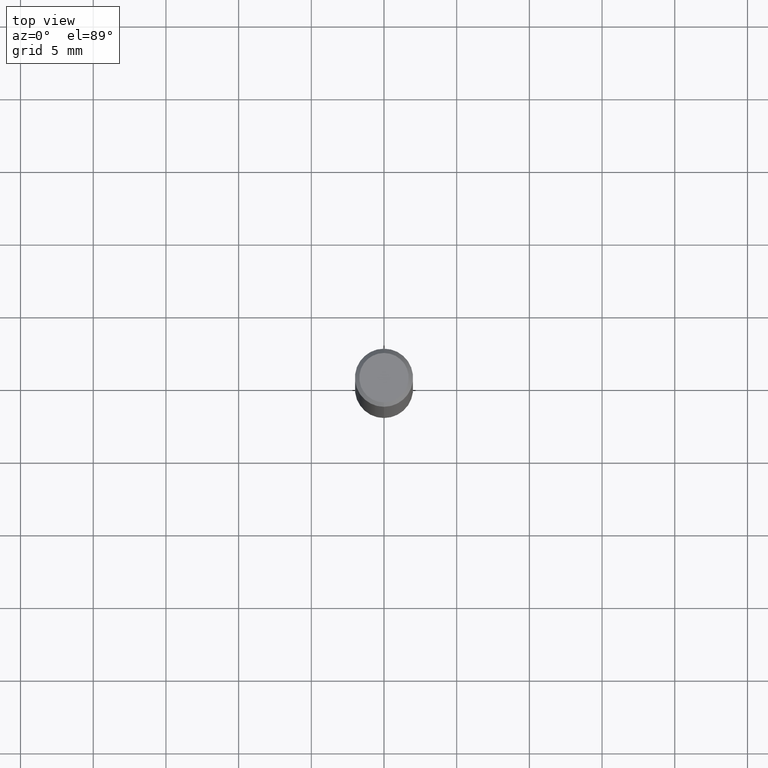
[diagram: clean part render]
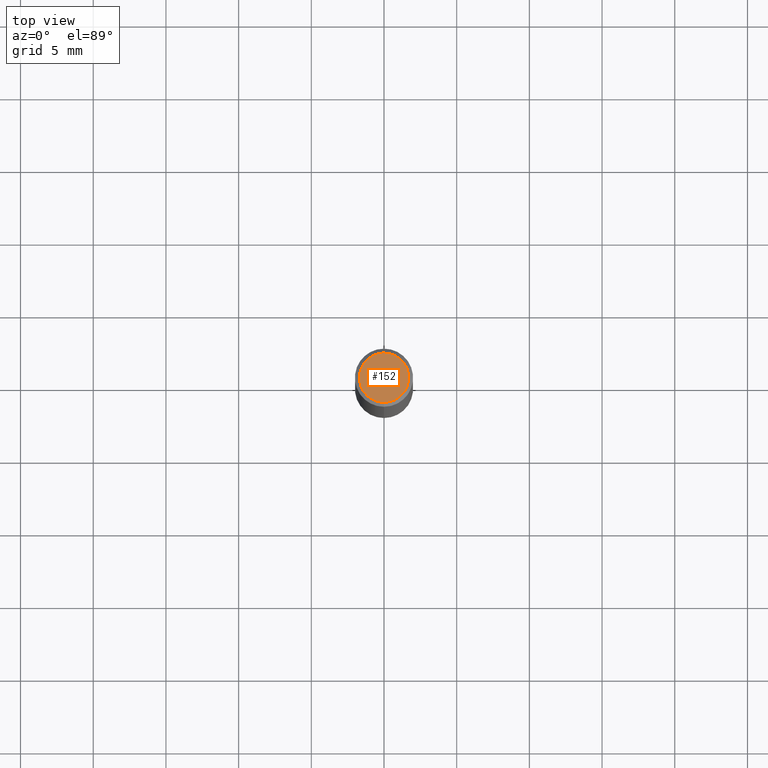
[diagram: same view with one face highlighted and labeled with its STEP entity id]
A machine part, top view. The second image highlights one B-rep face of the part: STEP entity #152.
In plain terms, the highlighted planar face has unit normal (-0, 0, 1).
Its self-contained STEP definition (entity closure, byte-faithful):
#90=EDGE_CURVE('',#94,#166,#217,.T.);
#94=VERTEX_POINT('',#221);
#152=ADVANCED_FACE('',(#285),#286,.T.);
#166=VERTEX_POINT('',#303);
#174=EDGE_CURVE('',#166,#94,#311,.T.);
#217=CIRCLE('',#350,1.7);
#221=CARTESIAN_POINT('',(2.08183080149804E-016,-1.7,0.0));
#285=FACE_OUTER_BOUND('',#436,.T.);
#286=PLANE('',#437);
#303=CARTESIAN_POINT('',(0.0,1.7,0.0));
#311=CIRCLE('',#468,1.7);
#350=AXIS2_PLACEMENT_3D('',#509,#510,#511);
#436=EDGE_LOOP('',(#589,#590));
#437=AXIS2_PLACEMENT_3D('',#591,#592,#593);
#468=AXIS2_PLACEMENT_3D('',#620,#621,#622);
#509=CARTESIAN_POINT('',(0.0,0.0,0.0));
#510=DIRECTION('',(0.0,0.0,-1.0));
#511=DIRECTION('',(0.0,1.0,0.0));
#589=ORIENTED_EDGE('',*,*,#174,.F.);
#590=ORIENTED_EDGE('',*,*,#90,.F.);
#591=CARTESIAN_POINT('',(0.0,0.85,0.0));
#592=DIRECTION('',(-0.0,0.0,1.0));
#593=DIRECTION('',(0.0,-1.0,0.0));
#620=CARTESIAN_POINT('',(0.0,0.0,0.0));
#621=DIRECTION('',(0.0,0.0,-1.0));
#622=DIRECTION('',(0.0,1.0,0.0));